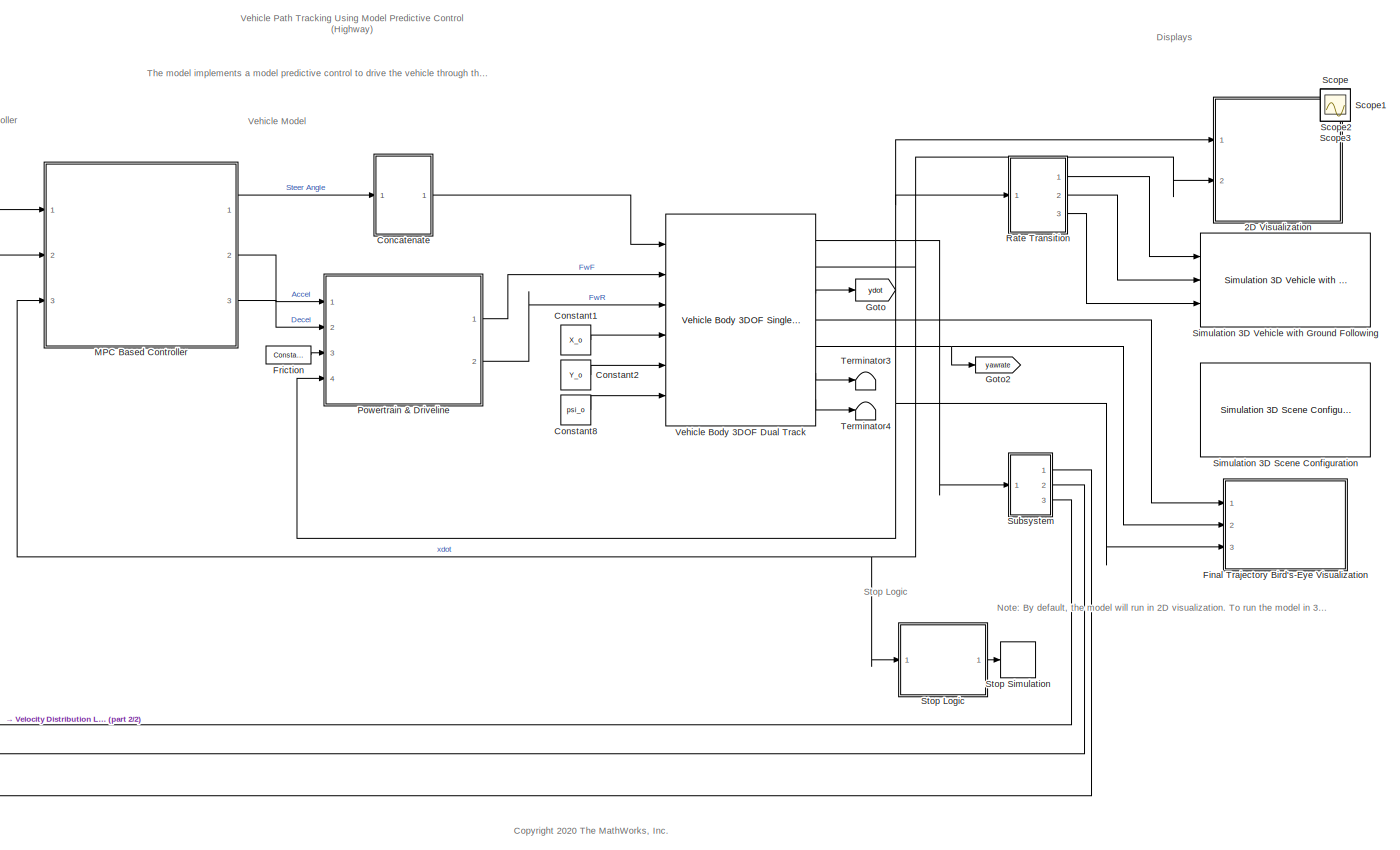
[diagram: root canvas - part 1/2, most of the canvas]
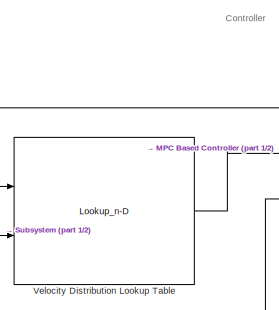
[diagram: root canvas - part 2/2, top left region]
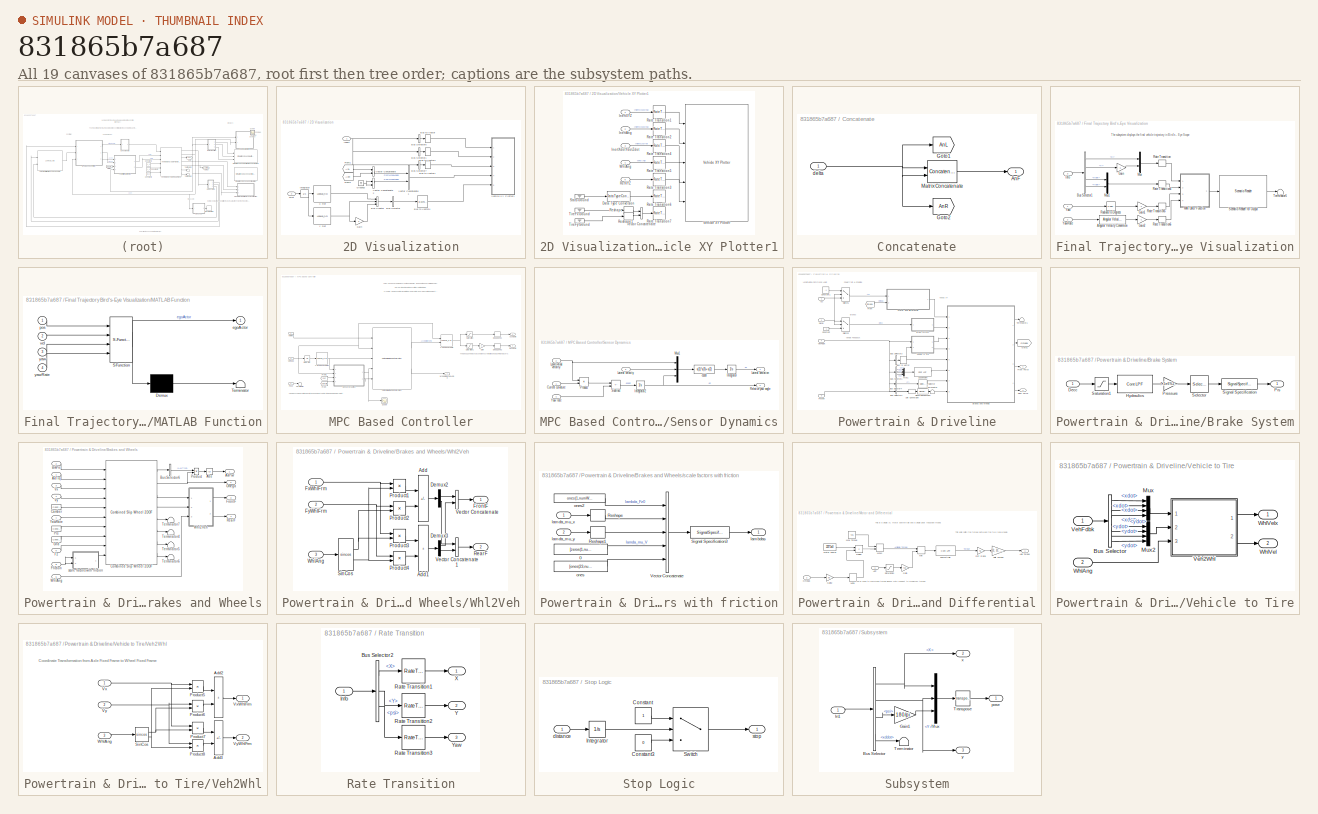
[diagram: thumbnail index - all 19 canvases of the model, root first then tree order]
MODEL slx_831865b7a687
KIND model
CONFIG AbsTol = auto
CONFIG EnableMultiTasking = off
CONFIG FixedStep = 0.001
CONFIG MaxStep = auto
CONFIG MinStep = auto
CONFIG PreLoadFcn = setUpModel
CONFIG RelTol = 1e-3
CONFIG SampleTimeConstraint = Unconstrained
CONFIG SolverName = VariableStepAuto
CONFIG StartTime = 0.0
CONFIG StopTime = inf
WORKSPACE source: mxarray member
WORKSPACE firstWarning = 0
WORKSPACE originalScenarioChecksum = 'F73A6DA3C723D3CA73A6F931B7A52A9C'
BLOCK [SubSystem] 2D Visualization
  Ports = [2]
  RequestExecContextInheritance = off
BLOCK [BusCreator] 2D Visualization/Bus Creator
  DisplayOption = bar
  InheritFromInputs = on
  Inputs = 3
  Ports = [3, 1]
BLOCK [BusSelector] 2D Visualization/Bus Selector
  OutputAsBus = on
  OutputSignals = signal1,signal2,signal3
  Ports = [1, 1]
BLOCK [BusSelector] 2D Visualization/Bus Selector1
  OutputAsBus = on
  OutputSignals = InertFrm.Cg.Ang.phi,InertFrm.Cg.Ang.theta,InertFrm.Cg.Ang.psi
  Ports = [1, 1]
BLOCK [BusSelector] 2D Visualization/Bus Selector6
  OutputAsBus = on
  OutputSignals = InertFrm.Geom.Disp.X,InertFrm.Geom.Disp.Y,InertFrm.Geom.Disp.Z
  Ports = [1, 1]
BLOCK [BusSelector] 2D Visualization/Bus Selector7
  OutputAsBus = on
  OutputSignals = InertFrm.Geom.Vel.Xdot,InertFrm.Geom.Vel.Ydot,InertFrm.Geom.Vel.Zdot
  Ports = [1, 1]
BLOCK [BusToVector] 2D Visualization/Bus to Vector
BLOCK [BusToVector] 2D Visualization/Bus to Vector1
BLOCK [BusToVector] 2D Visualization/Bus to Vector2
BLOCK [BusToVector] 2D Visualization/Bus to Vector4
BLOCK [From] 2D Visualization/From1
  GotoTag = AnL
  TagVisibility = global
BLOCK [From] 2D Visualization/From2
  GotoTag = AnR
  TagVisibility = global
BLOCK [Gain] 2D Visualization/Gain
  Gain = 0
BLOCK [Ground] 2D Visualization/Ground3
BLOCK [Inport] 2D Visualization/Inport
BLOCK [Integrator] 2D Visualization/Integrator
  Ports = [1, 1]
BLOCK [Concatenate] 2D Visualization/Vector Concatenate
  Ports = [2, 1]
BLOCK [Concatenate] 2D Visualization/Vector Concatenate1
  Ports = [2, 1]
BLOCK [Concatenate] 2D Visualization/Vector Concatenate2
  Ports = [2, 1]
BLOCK [SubSystem] 2D Visualization/Vehicle XY Plotter1
  Ports = [5]
  RequestExecContextInheritance = off
BLOCK [DataTypeConversion] 2D Visualization/Vehicle XY Plotter1/Data Type Conversion
  OutDataTypeStr = double
  RndMeth = Floor
  SaturateOnIntegerOverflow = off
BLOCK [Inport] 2D Visualization/Vehicle XY Plotter1/InertAng
  Port = 2
BLOCK [Inport] 2D Visualization/Vehicle XY Plotter1/InertXYZ
BLOCK [Inport] 2D Visualization/Vehicle XY Plotter1/InertXdotYdotZdot
  Port = 3
BLOCK [RateTransition] 2D Visualization/Vehicle XY Plotter1/Rate Transition1
  Deterministic = off
  OutPortSampleTime = pltDT
BLOCK [RateTransition] 2D Visualization/Vehicle XY Plotter1/Rate Transition2
  Deterministic = off
  OutPortSampleTime = pltDT
BLOCK [RateTransition] 2D Visualization/Vehicle XY Plotter1/Rate Transition3
  Deterministic = off
  OutPortSampleTime = pltDT
BLOCK [RateTransition] 2D Visualization/Vehicle XY Plotter1/Rate Transition4
  Deterministic = off
  OutPortSampleTime = pltDT
BLOCK [RateTransition] 2D Visualization/Vehicle XY Plotter1/Rate Transition5
  Deterministic = off
  OutPortSampleTime = pltDT
BLOCK [RateTransition] 2D Visualization/Vehicle XY Plotter1/Rate Transition6
  Deterministic = off
  OutPortSampleTime = pltDT
BLOCK [RateTransition] 2D Visualization/Vehicle XY Plotter1/Rate Transition7
  Deterministic = off
  OutPortSampleTime = pltDT
BLOCK [Inport] 2D Visualization/Vehicle XY Plotter1/RefXYZ
  Port = 5
BLOCK [Reshape] 2D Visualization/Vehicle XY Plotter1/Reshape
  OutputDimensionality = Row vector (2-D)
  Ports = [1, 1]
BLOCK [Reshape] 2D Visualization/Vehicle XY Plotter1/Reshape1
  OutputDimensionality = Row vector (2-D)
  Ports = [1, 1]
BLOCK [Ground] 2D Visualization/Vehicle XY Plotter1/Stats Ground
BLOCK [Ground] 2D Visualization/Vehicle XY Plotter1/TireFx Ground
BLOCK [Ground] 2D Visualization/Vehicle XY Plotter1/TireFy Ground
BLOCK [Concatenate] 2D Visualization/Vehicle XY Plotter1/Vector Concatenate
  Mode = Multidimensional array
  Ports = [2, 1]
BLOCK [Reference] 2D Visualization/Vehicle XY Plotter1/Vehicle XY Plotter  REF=vehdynlibviscommon/Vehicle XY Plotter
  Ports = [5]
  SourceBlock = vehdynlibviscommon/Vehicle XY Plotter
  SourceProductBaseCode = VE
  SourceType = Vehicle XY Plotter
BLOCK [Inport] 2D Visualization/Vehicle XY Plotter1/WhlAng
  Port = 4
BLOCK [Lookup_n-D] 2D Visualization/X Ref
  BreakpointsForDimension1 = gradbp
  InputPortMap = u0
  InternalRulePriority = Speed
  NumberOfTableDimensions = 1
  Ports = [1, 1]
  RndMeth = Simplest
  Table = xRef2s
BLOCK [Lookup_n-D] 2D Visualization/Y Ref
  BreakpointsForDimension1 = gradbp
  InputPortMap = u0
  InternalRulePriority = Speed
  NumberOfTableDimensions = 1
  Ports = [1, 1]
  RndMeth = Simplest
  Table = yRef2s
BLOCK [Inport] 2D Visualization/xDot
  Port = 2
BLOCK [SubSystem] Concatenate
  Ports = [1, 1]
  RequestExecContextInheritance = off
BLOCK [Outport] Concatenate/AnF
  VectorParamsAs1DForOutWhenUnconnected = off
BLOCK [Goto] Concatenate/Goto1
  GotoTag = AnL
  TagVisibility = global
BLOCK [Goto] Concatenate/Goto2
  GotoTag = AnR
  TagVisibility = global
BLOCK [Concatenate] Concatenate/Matrix Concatenate
  Ports = [2, 1]
BLOCK [Inport] Concatenate/delta
BLOCK [Constant] Constant1
  Value = X_o
BLOCK [Constant] Constant2
  Value = Y_o
BLOCK [Constant] Constant8
  Value = psi_o
BLOCK [SubSystem] Final Trajectory Bird's-Eye Visualization
  Ports = [3]
  RequestExecContextInheritance = off
BLOCK [Reference] Final Trajectory Bird's-Eye Visualization/Angular Velocity Conversion  REF=aerolibconvert2/Angular Velocity
Conversion
  Ports = [1, 1]
  SourceBlock = aerolibconvert2/Angular Velocity\nConversion
  SourceProductBaseCode = AE
  SourceType = Angular Velocity Conversion
BLOCK [BusSelector] Final Trajectory Bird's-Eye Visualization/Bus Selector1
  OutputSignals = InertFrm.Cg.Disp.X,InertFrm.Cg.Disp.Y,InertFrm.Cg.Vel.Xdot,InertFrm.Cg.Vel.Ydot
  Ports = [1, 4]
BLOCK [Gain] Final Trajectory Bird's-Eye Visualization/Gain
  Gain = -1
BLOCK [Gain] Final Trajectory Bird's-Eye Visualization/Gain1
  Gain = -1
BLOCK [Gain] Final Trajectory Bird's-Eye Visualization/Gain2
  Gain = -1
BLOCK [Inport] Final Trajectory Bird's-Eye Visualization/Info
  Port = 3
BLOCK [SubSystem] Final Trajectory Bird's-Eye Visualization/MATLAB Function
  ErrorFcn = Stateflow.Translate.translate
  PermitHierarchicalResolution = ExplicitOnly
  Ports = [4, 1]
  RequestExecContextInheritance = off
  SFBlockType = MATLAB Function
  TreatAsAtomicUnit = on
BLOCK [Demux] Final Trajectory Bird's-Eye Visualization/MATLAB Function/ Demux 
  Outputs = 1
  Ports = [1, 1]
BLOCK [S-Function] Final Trajectory Bird's-Eye Visualization/MATLAB Function/ SFunction 
  EnableBusSupport = on
  FunctionName = sf_sfun
  PortCounts = [4 2]
  Ports = [4, 2]
  SFcnIsStateOwnerBlock = off
  SFunctionDeploymentMode = off
  Tag = Stateflow S-Function 2
BLOCK [Terminator] Final Trajectory Bird's-Eye Visualization/MATLAB Function/ Terminator 
BLOCK [Outport] Final Trajectory Bird's-Eye Visualization/MATLAB Function/egoActor
BLOCK [Inport] Final Trajectory Bird's-Eye Visualization/MATLAB Function/pos
BLOCK [Inport] Final Trajectory Bird's-Eye Visualization/MATLAB Function/vel
  Port = 2
BLOCK [Inport] Final Trajectory Bird's-Eye Visualization/MATLAB Function/yaw
  Port = 3
BLOCK [Inport] Final Trajectory Bird's-Eye Visualization/MATLAB Function/yawRate
  Port = 4
BLOCK [Mux] Final Trajectory Bird's-Eye Visualization/Mux
  DisplayOption = bar
  Inputs = 2
  Ports = [2, 1]
BLOCK [Mux] Final Trajectory Bird's-Eye Visualization/Mux1
  DisplayOption = bar
  Inputs = 2
  Ports = [2, 1]
BLOCK [Reference] Final Trajectory Bird's-Eye Visualization/Radians to Degrees  REF=simulink_extras/Transformations/Radians
to Degrees
  Ports = [1, 1]
  SourceBlock = simulink_extras/Transformations/Radians\nto Degrees
  SourceProductBaseCode = SL
  SourceType = RadiansToDegrees
BLOCK [RateTransition] Final Trajectory Bird's-Eye Visualization/Rate Transition
BLOCK [RateTransition] Final Trajectory Bird's-Eye Visualization/Rate Transition4
  NameLocation = left
BLOCK [RateTransition] Final Trajectory Bird's-Eye Visualization/Rate Transition5
BLOCK [RateTransition] Final Trajectory Bird's-Eye Visualization/Rate Transition6
BLOCK [Reference] Final Trajectory Bird's-Eye Visualization/Scenario Reader for Output   REF=drivingscenarioandsensors/Scenario Reader
  Ports = [1, 1]
  SourceBlock = drivingscenarioandsensors/Scenario Reader
  SourceProductBaseCode = DR
  SourceType = driving.scenario.internal.ScenarioReader
BLOCK [Terminator] Final Trajectory Bird's-Eye Visualization/Terminator6
BLOCK [Inport] Final Trajectory Bird's-Eye Visualization/Yaw
BLOCK [Inport] Final Trajectory Bird's-Eye Visualization/YawRate
  Port = 2
BLOCK [Reference] Friction  REF=vehdynlibtirecommon/Constant
  Ports = [0, 1]
  SourceBlock = vehdynlibtirecommon/Constant
  SourceProductBaseCode = VE
BLOCK [Goto] Goto
  GotoTag = ydot
  TagVisibility = global
BLOCK [Goto] Goto2
  GotoTag = yawrate
  TagVisibility = global
BLOCK [SubSystem] MPC Based Controller
  Ports = [3, 3]
  RequestExecContextInheritance = off
  VariantControl = Stanley
BLOCK [Lookup_n-D] MPC Based Controller/1-D Lookup Table1
  BreakpointsForDimension1 = gradbp
  ExtrapMethod = Clip
  InputPortMap = u0
  InternalRulePriority = Speed
  InterpMethod = Cubic spline
  NumberOfTableDimensions = 1
  Ports = [1, 1]
  RndMeth = Simplest
  Table = curvature
BLOCK [Lookup_n-D] MPC Based Controller/2-D Lookup Table
  BreakpointsForDimension1 = vel_vec
  BreakpointsForDimension2 = accel_vec
  InputPortMap = u0,u1
  InternalRulePriority = Speed
  Ports = [2, 1]
  RndMeth = Simplest
  Table = pedal_map'
BLOCK [Outport] MPC Based Controller/AccelCmd
  Port = 2
BLOCK [DeadZone] MPC Based Controller/Dead Zone1
  LowerValue = -0.001
  UpperValue = 0.001
BLOCK [DeadZone] MPC Based Controller/Dead Zone2
  LowerValue = -0.001
  UpperValue = 0.001
BLOCK [Outport] MPC Based Controller/DecelCmd
  Port = 3
BLOCK [From] MPC Based Controller/From
  GotoTag = yawrate
  TagVisibility = global
BLOCK [From] MPC Based Controller/From1
  GotoTag = ydot
  TagVisibility = global
BLOCK [Gain] MPC Based Controller/Gain
  Gain = -1
BLOCK [Integrator] MPC Based Controller/Integrator
  Ports = [1, 1]
BLOCK [Reference] MPC Based Controller/Path Following Control System  REF=mpcadaslib/Path Following Control System
  Ports = [5, 2]
  SourceBlock = mpcadaslib/Path Following Control System
  SourceProductBaseCode = MP
  SourceType = Path following control (PFC) system
BLOCK [Inport] MPC Based Controller/Pose
BLOCK [Saturate] MPC Based Controller/Saturation
  LowerLimit = 0
  UpperLimit = 1
BLOCK [Saturate] MPC Based Controller/Saturation1
  LowerLimit = -1
  UpperLimit = 0
BLOCK [Scope] MPC Based Controller/Scope
  Floating = off
  NumInputPorts = 1
  Ports = [1]
  ScopeSpecificationString = Simulink.scopes.TimeScopeBlockCfg('CurrentConfiguration', extmgr.ConfigurationSet(extmgr.Configuration('Core','General UI',true),extmgr.Configuration('Core','Source UI',true),extmgr.Configuration('Sources','WiredSimulink',true,'DataLoggingVariableName','ScopeData1'),extmgr.Configuration('Visuals','Time Domain',true,'SerializedDisplays',{struct('MinYLimReal','-0.8712','MaxYLimReal','-0.36912','YLab...<+1427ch>
BLOCK [SubSystem] MPC Based Controller/Sensor Dynamics
  Ports = [4, 2]
  RequestExecContextInheritance = off
BLOCK [Inport] MPC Based Controller/Sensor Dynamics/Current curvature
BLOCK [Integrator] MPC Based Controller/Sensor Dynamics/Integrator
  Ports = [1, 1]
BLOCK [Integrator] MPC Based Controller/Sensor Dynamics/Integrator2
  Ports = [1, 1]
BLOCK [Outport] MPC Based Controller/Sensor Dynamics/Lateral deviation
  VectorParamsAs1DForOutWhenUnconnected = off
BLOCK [Inport] MPC Based Controller/Sensor Dynamics/Lateral velocity
  Port = 3
BLOCK [Inport] MPC Based Controller/Sensor Dynamics/Longitudinal velocity
  Port = 2
BLOCK [Mux] MPC Based Controller/Sensor Dynamics/Mux1
  DisplayOption = bar
  Inputs = [1 1 1]
  Ports = [3, 1]
BLOCK [Product] MPC Based Controller/Sensor Dynamics/Product
  Ports = [2, 1]
BLOCK [Outport] MPC Based Controller/Sensor Dynamics/Relative yaw angle
  Port = 2
  VectorParamsAs1DForOutWhenUnconnected = off
BLOCK [Sum] MPC Based Controller/Sensor Dynamics/Subtract
  IconShape = rectangular
  Inputs = -+
  Ports = [2, 1]
BLOCK [Inport] MPC Based Controller/Sensor Dynamics/Yaw rate
  Port = 4
BLOCK [Fcn] MPC Based Controller/Sensor Dynamics/e1dot
  Expr = u(1)*u(3)+u(2)
BLOCK [Terminator] MPC Based Controller/Terminator
BLOCK [Inport] MPC Based Controller/VelFdbk
  Port = 3
BLOCK [Inport] MPC Based Controller/VelRef
  Port = 2
BLOCK [Outport] MPC Based Controller/WheelSteeringAngle
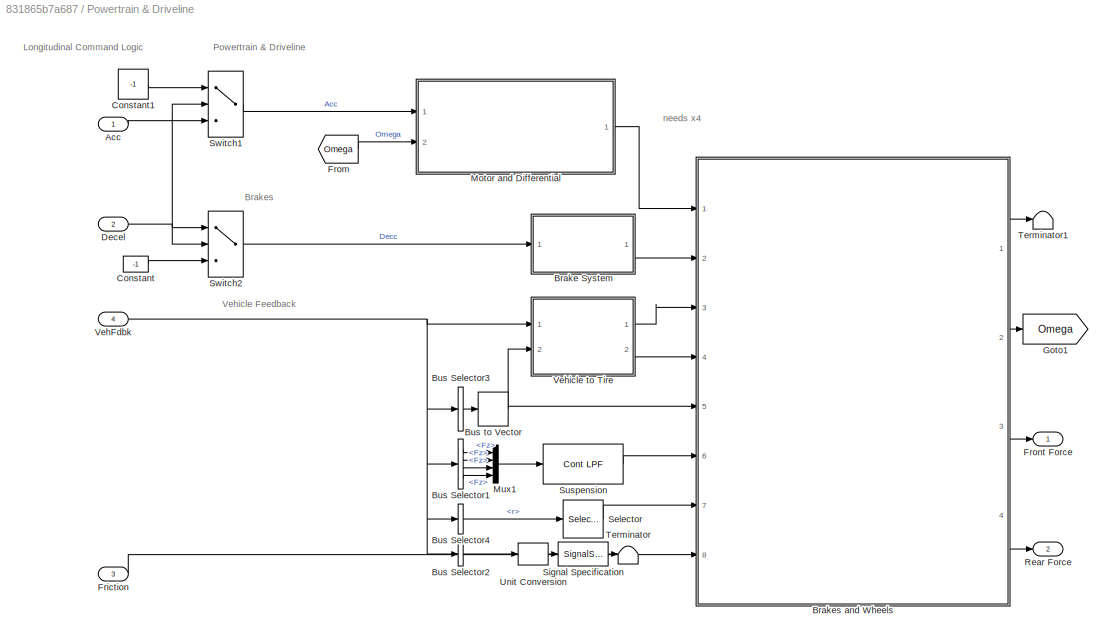
BLOCK [SubSystem] Powertrain & Driveline
  Ports = [4, 2]
  RequestExecContextInheritance = off
BLOCK [Inport] Powertrain & Driveline/Acc
BLOCK [SubSystem] Powertrain & Driveline/Brake System
  Ports = [1, 1]
  RequestExecContextInheritance = off
BLOCK [Inport] Powertrain & Driveline/Brake System/Decc
BLOCK [Reference] Powertrain & Driveline/Brake System/Hydraulics  REF=autolibutils/Cont LPF
  Ports = [1, 1]
  SourceBlock = autolibutils/Cont LPF
  SourceProductBaseCode = PW,DR,MT,UV,VE
BLOCK [Gain] Powertrain & Driveline/Brake System/Pressure
  Gain = 7.5e6%2e7
BLOCK [Outport] Powertrain & Driveline/Brake System/Prs
  PortDimensions = 4
  VectorParamsAs1DForOutWhenUnconnected = off
BLOCK [Saturate] Powertrain & Driveline/Brake System/Saturation1
  LowerLimit = 0
  UpperLimit = inf
  ZeroCross = off
BLOCK [Selector] Powertrain & Driveline/Brake System/Selector
  IndexOptions = Index vector (dialog)
  Indices = [1 1 1 1]
  InputPortWidth = 1
  OutputSizes = 1
  Ports = [1, 1]
BLOCK [SignalSpecification] Powertrain & Driveline/Brake System/Signal Specification
  Unit = Pa
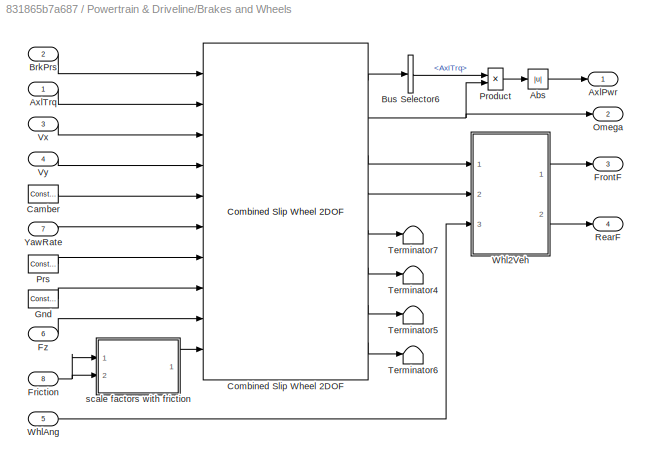
BLOCK [SubSystem] Powertrain & Driveline/Brakes and Wheels
  Ports = [8, 4]
  RequestExecContextInheritance = off
  TreatAsAtomicUnit = on
BLOCK [Abs] Powertrain & Driveline/Brakes and Wheels/Abs
  SaturateOnIntegerOverflow = off
BLOCK [Outport] Powertrain & Driveline/Brakes and Wheels/AxlPwr
BLOCK [Inport] Powertrain & Driveline/Brakes and Wheels/AxlTrq
BLOCK [Inport] Powertrain & Driveline/Brakes and Wheels/BrkPrs
  Port = 2
BLOCK [BusSelector] Powertrain & Driveline/Brakes and Wheels/Bus Selector6
  OutputSignals = AxlTrq
  Ports = [1, 1]
BLOCK [Reference] Powertrain & Driveline/Brakes and Wheels/Camber  REF=vehdynlibtirecommon/Constant
  Ports = [0, 1]
  SourceBlock = vehdynlibtirecommon/Constant
  SourceProductBaseCode = VE
BLOCK [Reference] Powertrain & Driveline/Brakes and Wheels/Combined Slip Wheel 2DOF  REF=vehdynlibtire/Combined Slip Wheel 2DOF
  Ports = [10, 8]
  SourceBlock = vehdynlibtire/Combined Slip Wheel 2DOF
  SourceProductBaseCode = VE
  SourceType = Combined Slip Wheel 2DOF
BLOCK [Inport] Powertrain & Driveline/Brakes and Wheels/Friction
  Port = 8
BLOCK [Outport] Powertrain & Driveline/Brakes and Wheels/FrontF
  Port = 3
BLOCK [Inport] Powertrain & Driveline/Brakes and Wheels/Fz
  Port = 6
  PortDimensions = 4
BLOCK [Reference] Powertrain & Driveline/Brakes and Wheels/Gnd  REF=vehdynlibtirecommon/Constant
  Ports = [0, 1]
  SourceBlock = vehdynlibtirecommon/Constant
  SourceProductBaseCode = VE
BLOCK [Outport] Powertrain & Driveline/Brakes and Wheels/Omega
  Port = 2
BLOCK [Product] Powertrain & Driveline/Brakes and Wheels/Product
  Ports = [2, 1]
BLOCK [Reference] Powertrain & Driveline/Brakes and Wheels/Prs  REF=vehdynlibtirecommon/Constant
  Ports = [0, 1]
  SourceBlock = vehdynlibtirecommon/Constant
  SourceProductBaseCode = VE
BLOCK [Outport] Powertrain & Driveline/Brakes and Wheels/RearF
  Port = 4
BLOCK [Terminator] Powertrain & Driveline/Brakes and Wheels/Terminator4
BLOCK [Terminator] Powertrain & Driveline/Brakes and Wheels/Terminator5
BLOCK [Terminator] Powertrain & Driveline/Brakes and Wheels/Terminator6
BLOCK [Terminator] Powertrain & Driveline/Brakes and Wheels/Terminator7
BLOCK [Inport] Powertrain & Driveline/Brakes and Wheels/Vx
  Port = 3
BLOCK [Inport] Powertrain & Driveline/Brakes and Wheels/Vy
  Port = 4
BLOCK [SubSystem] Powertrain & Driveline/Brakes and Wheels/Whl2Veh
  Ports = [3, 2]
  RequestExecContextInheritance = off
BLOCK [Sum] Powertrain & Driveline/Brakes and Wheels/Whl2Veh/Add
  IconShape = rectangular
  Inputs = +-
  Ports = [2, 1]
BLOCK [Sum] Powertrain & Driveline/Brakes and Wheels/Whl2Veh/Add1
  IconShape = rectangular
  Ports = [2, 1]
BLOCK [Demux] Powertrain & Driveline/Brakes and Wheels/Whl2Veh/Demux2
  Outputs = [2 2]
  Ports = [1, 2]
BLOCK [Demux] Powertrain & Driveline/Brakes and Wheels/Whl2Veh/Demux3
  Outputs = [2 2]
  Ports = [1, 2]
BLOCK [Outport] Powertrain & Driveline/Brakes and Wheels/Whl2Veh/FrontF
BLOCK [Inport] Powertrain & Driveline/Brakes and Wheels/Whl2Veh/FxWhlFrm
  PortDimensions = 4
BLOCK [Inport] Powertrain & Driveline/Brakes and Wheels/Whl2Veh/FyWhlFrm
  Port = 2
  PortDimensions = 4
BLOCK [Product] Powertrain & Driveline/Brakes and Wheels/Whl2Veh/Product1
  Ports = [2, 1]
BLOCK [Product] Powertrain & Driveline/Brakes and Wheels/Whl2Veh/Product2
  Ports = [2, 1]
BLOCK [Product] Powertrain & Driveline/Brakes and Wheels/Whl2Veh/Product3
  Ports = [2, 1]
BLOCK [Product] Powertrain & Driveline/Brakes and Wheels/Whl2Veh/Product4
  Ports = [2, 1]
BLOCK [Outport] Powertrain & Driveline/Brakes and Wheels/Whl2Veh/RearF
  Port = 2
BLOCK [Trigonometry] Powertrain & Driveline/Brakes and Wheels/Whl2Veh/SinCos
  Operator = sincos
  Ports = [1, 2]
BLOCK [Concatenate] Powertrain & Driveline/Brakes and Wheels/Whl2Veh/Vector Concatenate
  ConcatenateDimension = 2
  Mode = Multidimensional array
  Ports = [2, 1]
BLOCK [Concatenate] Powertrain & Driveline/Brakes and Wheels/Whl2Veh/Vector Concatenate1
  ConcatenateDimension = 2
  Mode = Multidimensional array
  Ports = [2, 1]
BLOCK [Inport] Powertrain & Driveline/Brakes and Wheels/Whl2Veh/WhlAng
  Port = 3
BLOCK [Inport] Powertrain & Driveline/Brakes and Wheels/WhlAng
  Port = 5
BLOCK [Inport] Powertrain & Driveline/Brakes and Wheels/YawRate
  Port = 7
BLOCK [SubSystem] Powertrain & Driveline/Brakes and Wheels/scale factors with friction
  Ports = [2, 1]
  RequestExecContextInheritance = off
BLOCK [Constant] Powertrain & Driveline/Brakes and Wheels/scale factors with friction/0
  Value = [zeros(1,numWheels)]
  VectorParams1D = off
BLOCK [Reshape] Powertrain & Driveline/Brakes and Wheels/scale factors with friction/Reshape
  OutputDimensionality = Row vector (2-D)
  OutputDimensions = [1,numWheels]
  Ports = [1, 1]
BLOCK [Reshape] Powertrain & Driveline/Brakes and Wheels/scale factors with friction/Reshape1
  OutputDimensionality = Row vector (2-D)
  OutputDimensions = [1,numWheels]
  Ports = [1, 1]
BLOCK [SignalSpecification] Powertrain & Driveline/Brakes and Wheels/scale factors with friction/Signal Specification3
  Unit = 1
BLOCK [Concatenate] Powertrain & Driveline/Brakes and Wheels/scale factors with friction/Vector Concatenate
  Mode = Multidimensional array
  NumInputs = 5
  Ports = [5, 1]
BLOCK [Outport] Powertrain & Driveline/Brakes and Wheels/scale factors with friction/lambdas
  Unit = 1
  VectorParamsAs1DForOutWhenUnconnected = off
BLOCK [Inport] Powertrain & Driveline/Brakes and Wheels/scale factors with friction/lamda_mu_x
BLOCK [Inport] Powertrain & Driveline/Brakes and Wheels/scale factors with friction/lamda_mu_y
  Port = 2
BLOCK [Constant] Powertrain & Driveline/Brakes and Wheels/scale factors with friction/ones
  Value = [ones(23,numWheels)]
  VectorParams1D = off
BLOCK [Constant] Powertrain & Driveline/Brakes and Wheels/scale factors with friction/ones2
  Value = ones(1,numWheels)
  VectorParams1D = off
BLOCK [BusSelector] Powertrain & Driveline/Bus Selector1
  OutputSignals = BdyFrm.Forces.Tires.FrntTires.Lft.Fz,BdyFrm.Forces.Tires.FrntTires.Rght.Fz,BdyFrm.Forces.Tires.RearTires.Lft.Fz,BdyFrm.Forces.Tires.RearTires.Rght.Fz
  Ports = [1, 4]
BLOCK [BusSelector] Powertrain & Driveline/Bus Selector2
  OutputAsBus = on
  OutputSignals = BdyFrm.Cg.Vel.xdot
  Ports = [1, 1]
BLOCK [BusSelector] Powertrain & Driveline/Bus Selector3
  OutputAsBus = on
  OutputSignals = BdyFrm.FrntAxl.Steer.WhlAngFL,BdyFrm.FrntAxl.Steer.WhlAngFR,BdyFrm.RearAxl.Steer.WhlAngRL,BdyFrm.RearAxl.Steer.WhlAngRR
  Ports = [1, 1]
BLOCK [BusSelector] Powertrain & Driveline/Bus Selector4
  OutputSignals = BdyFrm.Cg.AngVel.r
  Ports = [1, 1]
BLOCK [BusToVector] Powertrain & Driveline/Bus to Vector
BLOCK [Constant] Powertrain & Driveline/Constant
  NameLocation = top
  Value = -1
BLOCK [Constant] Powertrain & Driveline/Constant1
  Value = -1
BLOCK [Inport] Powertrain & Driveline/Decel
  Port = 2
BLOCK [Inport] Powertrain & Driveline/Friction
  Port = 3
BLOCK [From] Powertrain & Driveline/From
  GotoTag = Omega
BLOCK [Outport] Powertrain & Driveline/Front Force
  VectorParamsAs1DForOutWhenUnconnected = off
BLOCK [Goto] Powertrain & Driveline/Goto1
  GotoTag = Omega
BLOCK [SubSystem] Powertrain & Driveline/Motor and Differential
  Ports = [2, 1]
  RequestExecContextInheritance = off
BLOCK [Inport] Powertrain & Driveline/Motor and Differential/APP
BLOCK [Outport] Powertrain & Driveline/Motor and Differential/Axle Torque
BLOCK [Gain] Powertrain & Driveline/Motor and Differential/Diff Ratio
  Gain = 9.5
BLOCK [Product] Powertrain & Driveline/Motor and Differential/Divide
  Inputs = */
  Ports = [2, 1]
BLOCK [Gain] Powertrain & Driveline/Motor and Differential/Gain
  Gain = 425
BLOCK [Gain] Powertrain & Driveline/Motor and Differential/Gain2
  Gain = 9.5
BLOCK [Constant] Powertrain & Driveline/Motor and Differential/Max Torque
  Value = 425
BLOCK [MinMax] Powertrain & Driveline/Motor and Differential/Max1
  Inputs = 2
  Ports = [2, 1]
BLOCK [MinMax] Powertrain & Driveline/Motor and Differential/Min
  Inputs = 2
  Ports = [2, 1]
BLOCK [MinMax] Powertrain & Driveline/Motor and Differential/Min1
  Ports = [1, 1]
BLOCK [Constant] Powertrain & Driveline/Motor and Differential/Motor Power
  Value = 225*1e3
BLOCK [Inport] Powertrain & Driveline/Motor and Differential/Omega
  Port = 2
BLOCK [Reference] Powertrain & Driveline/Motor and Differential/Powertrain  REF=autolibutils/Cont LPF
  Ports = [1, 1]
  SourceBlock = autolibutils/Cont LPF
  SourceProductBaseCode = PW,DR,MT,UV,VE
BLOCK [Saturate] Powertrain & Driveline/Motor and Differential/Saturation
  LowerLimit = 0
  UpperLimit = inf
BLOCK [Gain] Powertrain & Driveline/Motor and Differential/Split Torque
  Gain = [0; 0; 0.5; 0.5]
BLOCK [Mux] Powertrain & Driveline/Mux1
  DisplayOption = bar
  Ports = [4, 1]
BLOCK [Outport] Powertrain & Driveline/Rear Force
  Port = 2
  VectorParamsAs1DForOutWhenUnconnected = off
BLOCK [Selector] Powertrain & Driveline/Selector
  IndexOptions = Index vector (dialog)
  Indices = [1 1 1 1]
  InputPortWidth = 1
  OutputSizes = 1
  Ports = [1, 1]
BLOCK [SignalSpecification] Powertrain & Driveline/Signal Specification
  Unit = km/hr
BLOCK [Reference] Powertrain & Driveline/Suspension  REF=autolibutils/Cont LPF
  Ports = [1, 1]
  SourceBlock = autolibutils/Cont LPF
  SourceProductBaseCode = PW,DR,MT,UV,VE
BLOCK [Switch] Powertrain & Driveline/Switch1
  Criteria = u2 > Threshold
  InputSameDT = off
  SaturateOnIntegerOverflow = off
BLOCK [Switch] Powertrain & Driveline/Switch2
  Criteria = u2 > Threshold
  InputSameDT = off
  SaturateOnIntegerOverflow = off
BLOCK [Terminator] Powertrain & Driveline/Terminator
BLOCK [Terminator] Powertrain & Driveline/Terminator1
BLOCK [UnitConversion] Powertrain & Driveline/Unit Conversion
BLOCK [Inport] Powertrain & Driveline/VehFdbk
  Port = 4
BLOCK [SubSystem] Powertrain & Driveline/Vehicle to Tire
  Ports = [2, 2]
  RequestExecContextInheritance = off
BLOCK [BusSelector] Powertrain & Driveline/Vehicle to Tire/Bus Selector
  OutputSignals = BdyFrm.FrntAxl.Lft.Vel.xdot,BdyFrm.FrntAxl.Rght.Vel.xdot,BdyFrm.RearAxl.Lft.Vel.xdot,BdyFrm.RearAxl.Rght.Vel.xdot,BdyFrm.FrntAxl.Lft.Vel.ydot,BdyFrm.FrntAxl.Rght.Vel.ydot,BdyFrm.RearAxl.Lft.Vel.ydot,BdyFrm.RearAxl.Rght.Vel.ydot
  Ports = [1, 8]
BLOCK [Mux] Powertrain & Driveline/Vehicle to Tire/Mux
  DisplayOption = bar
  Ports = [4, 1]
BLOCK [Mux] Powertrain & Driveline/Vehicle to Tire/Mux2
  DisplayOption = bar
  Ports = [4, 1]
BLOCK [SubSystem] Powertrain & Driveline/Vehicle to Tire/Veh2Whl
  Ports = [3, 2]
  RequestExecContextInheritance = off
BLOCK [Sum] Powertrain & Driveline/Vehicle to Tire/Veh2Whl/Add2
  IconShape = rectangular
  Ports = [2, 1]
BLOCK [Sum] Powertrain & Driveline/Vehicle to Tire/Veh2Whl/Add3
  IconShape = rectangular
  Inputs = -+
  Ports = [2, 1]
BLOCK [Product] Powertrain & Driveline/Vehicle to Tire/Veh2Whl/Product5
  Ports = [2, 1]
BLOCK [Product] Powertrain & Driveline/Vehicle to Tire/Veh2Whl/Product6
  Ports = [2, 1]
BLOCK [Product] Powertrain & Driveline/Vehicle to Tire/Veh2Whl/Product7
  Ports = [2, 1]
BLOCK [Product] Powertrain & Driveline/Vehicle to Tire/Veh2Whl/Product8
  Ports = [2, 1]
BLOCK [Trigonometry] Powertrain & Driveline/Vehicle to Tire/Veh2Whl/SinCos
  Operator = sincos
  Ports = [1, 2]
BLOCK [Inport] Powertrain & Driveline/Vehicle to Tire/Veh2Whl/Vx
BLOCK [Outport] Powertrain & Driveline/Vehicle to Tire/Veh2Whl/VxWhlFrm
BLOCK [Inport] Powertrain & Driveline/Vehicle to Tire/Veh2Whl/Vy
  Port = 2
BLOCK [Outport] Powertrain & Driveline/Vehicle to Tire/Veh2Whl/VyWhlFrm
  Port = 2
BLOCK [Inport] Powertrain & Driveline/Vehicle to Tire/Veh2Whl/WhlAng
  Port = 3
BLOCK [Inport] Powertrain & Driveline/Vehicle to Tire/VehFdbk
BLOCK [Inport] Powertrain & Driveline/Vehicle to Tire/WhlAng
  Port = 2
BLOCK [Outport] Powertrain & Driveline/Vehicle to Tire/WhlVel
  Port = 2
BLOCK [Outport] Powertrain & Driveline/Vehicle to Tire/WhlVelx
BLOCK [SubSystem] Rate Transition
  Ports = [1, 3]
  RequestExecContextInheritance = off
BLOCK [BusSelector] Rate Transition/Bus Selector2
  OutputSignals = InertFrm.Geom.Disp.X,InertFrm.Geom.Disp.Y,InertFrm.Cg.Ang.psi
  Ports = [1, 3]
BLOCK [Inport] Rate Transition/Info
BLOCK [RateTransition] Rate Transition/Rate Transition1
  InitialCondition = X_o
  OutPortSampleTime = 0.01
BLOCK [RateTransition] Rate Transition/Rate Transition2
  InitialCondition = Y_o
  OutPortSampleTime = 0.01
BLOCK [RateTransition] Rate Transition/Rate Transition3
  OutPortSampleTime = 0.01
BLOCK [Outport] Rate Transition/X
BLOCK [Outport] Rate Transition/Y
  Port = 2
BLOCK [Outport] Rate Transition/Yaw
  Port = 3
BLOCK [Scope] Scope
  Floating = off
  IOType = viewer
  NumInputPorts = 1
  Ports = []
  ScopeSpecificationString = Simulink.scopes.TimeScopeBlockCfg('CurrentConfiguration', extmgr.ConfigurationSet(extmgr.Configuration('Core','General UI',true),extmgr.Configuration('Core','Source UI',true),extmgr.Configuration('Sources','WiredSimulink',true),extmgr.Configuration('Visuals','Time Domain',true,'SerializedDisplays',{struct('MinYLimReal','7.34564','MaxYLimReal','12.51715','YLabelReal','','MinYLimMag','7.34564','MaxY...<+1417ch>
BLOCK [Scope] Scope1
  Floating = off
  IOType = viewer
  NumInputPorts = 1
  Ports = []
  ScopeSpecificationString = Simulink.scopes.TimeScopeBlockCfg('CurrentConfiguration', extmgr.ConfigurationSet(extmgr.Configuration('Core','General UI',true),extmgr.Configuration('Core','Source UI',true),extmgr.Configuration('Sources','WiredSimulink',true,'DataLoggingVariableName','ScopeData1'),extmgr.Configuration('Visuals','Time Domain',true,'SerializedDisplays',{struct('MinYLimReal','-0.05077','MaxYLimReal','0.11333','YLab...<+1395ch>
BLOCK [Scope] Scope2
  Floating = off
  IOType = viewer
  NumInputPorts = 1
  Ports = []
  ScopeSpecificationString = Simulink.scopes.TimeScopeBlockCfg('CurrentConfiguration', extmgr.ConfigurationSet(extmgr.Configuration('Core','General UI',true),extmgr.Configuration('Core','Source UI',true),extmgr.Configuration('Sources','WiredSimulink',true,'DataLoggingVariableName','ScopeData2'),extmgr.Configuration('Visuals','Time Domain',true,'SerializedDisplays',{struct('MinYLimReal','-0.01838','MaxYLimReal','0.16543','YLab...<+1372ch>
BLOCK [Scope] Scope3
  Floating = off
  IOType = viewer
  NumInputPorts = 1
  Ports = []
  ScopeSpecificationString = Simulink.scopes.TimeScopeBlockCfg('CurrentConfiguration', extmgr.ConfigurationSet(extmgr.Configuration('Core','General UI',true),extmgr.Configuration('Core','Source UI',true),extmgr.Configuration('Sources','WiredSimulink',true,'DataLoggingVariableName','ScopeData1'),extmgr.Configuration('Visuals','Time Domain',true,'SerializedDisplays',{struct('MinYLimReal','-1.72377','MaxYLimReal','1.27465','YLab...<+1364ch>
BLOCK [Reference] Simulation 3D Scene Configuration  REF=sim3dlib/Simulation 3D Scene Configuration
  Commented = on
  Ports = []
  Priority = 1
  SourceBlock = sim3dlib/Simulation 3D Scene Configuration
  SourceProductBaseCode = AE,DR,UV,VE
  SourceType = Simulation 3D Scene Configuration
BLOCK [Reference] Simulation 3D Vehicle with Ground Following  REF=vdynlib/Vehicle Scenarios/Sim3D/Sim3D Vehicle/Components/Simulation 3D Vehicle with Ground Following
  Commented = on
  Ports = [3]
  Priority = -1
  SourceBlock = vdynlib/Vehicle Scenarios/Sim3D/Sim3D Vehicle/Components/Simulation 3D Vehicle with Ground Following
  SourceProductBaseCode = VE
  SourceType = Simulation 3D Vehicle with Ground Following
BLOCK [SubSystem] Stop Logic
  Ports = [1, 1]
  RequestExecContextInheritance = off
BLOCK [Constant] Stop Logic/Constant
BLOCK [Constant] Stop Logic/Constant3
  Value = 0
BLOCK [Integrator] Stop Logic/Integrator
  Ports = [1, 1]
BLOCK [Switch] Stop Logic/Switch
  InputSameDT = off
  SaturateOnIntegerOverflow = off
  Threshold = gradbp(end)-10
BLOCK [Inport] Stop Logic/distance
BLOCK [Outport] Stop Logic/stop
  NameLocation = top
BLOCK [Stop] Stop Simulation
BLOCK [SubSystem] Subsystem
  Ports = [1, 3]
  RequestExecContextInheritance = off
BLOCK [BusSelector] Subsystem/Bus Selector
  OutputSignals = InertFrm.Cg.Disp.X,InertFrm.Cg.Disp.Y,InertFrm.Cg.Ang.psi,BdyFrm.Cg.Acc.xddot
  Ports = [1, 4]
BLOCK [Gain] Subsystem/Gain1
  Gain = 180/pi
BLOCK [Inport] Subsystem/In1
BLOCK [Mux] Subsystem/Mux
  DisplayOption = bar
  Inputs = 3
  Ports = [3, 1]
BLOCK [Terminator] Subsystem/Terminator
BLOCK [Math] Subsystem/Transpose
  Operator = transpose
  Ports = [1, 1]
  SignedPower = on
BLOCK [Outport] Subsystem/pose
BLOCK [Outport] Subsystem/x
  Port = 2
BLOCK [Outport] Subsystem/y
  Port = 3
BLOCK [Terminator] Terminator3
BLOCK [Terminator] Terminator4
BLOCK [Reference] Vehicle Body 3DOF Dual Track  REF=autolibshared/Vehicle Body 3DOF Single Track
  Ports = [6, 7]
  SourceBlock = autolibshared/Vehicle Body 3DOF Single Track
  SourceProductBaseCode = PW,DR,MT,UV,VE
  SourceType = Vehicle Body 3DOF Lateral
BLOCK [Lookup_n-D] Velocity Distribution Lookup Table
  BreakpointsForDimension1 = xlt
  BreakpointsForDimension2 = ylt
  ExtrapMethod = Clip
  InputPortMap = u0,u1
  InternalRulePriority = Speed
  Ports = [2, 1]
  RndMeth = Simplest
  Table = vel
ANNOTATION (root): Vehicle Path Tracking Using Model Predictive Control (Highway)
ANNOTATION (root): <copyright redacted>
ANNOTATION (root): Note: By default, the model will run in 2D visualization. To run the model in 3D visualization, enable the "Simulation 3D Vehicle with Ground Following" and " Simulation 3D Scene Configuration " blocks. Then enable " D isplay 3D simulation window " in the Simulation 3D Scene Configuration block.
ANNOTATION (root): Controller
ANNOTATION (root): Displays
ANNOTATION (root): Stop Logic
ANNOTATION (root): The model implements a model predictive control to drive the vehicle through the US Highway scene.
ANNOTATION (root): Vehicle Model
ANNOTATION Final Trajectory Bird's-Eye Visualization: The subsystem displays the final vehicle trajectory in Bird's - Eye Scope
ANNOTATION MPC Based Controller: This block comes from the "Lane Keeping Assist System Using Model Predictive Control" example.
ANNOTATION MPC Based Controller: The 'Dead Zone' blocks is used to ensure that the pedal command is zero.
ANNOTATION MPC Based Controller: This 2-D Lookup Table was created using a for-loop and then normalizing. This is required because the output of the MPC controller is acceleration (m/s^2), but the powertrain model uses pedal commands from 0-1. Here are the steps in the script to create the table: 1.) The for-loop is used to calculate the required torque (Nm) from the powertrain. 2.) The positive torque values are normalized based...<+285ch>
ANNOTATION Powertrain & Driveline: Brakes
ANNOTATION Powertrain & Driveline: Longitudinal Command Logic
ANNOTATION Powertrain & Driveline: Powertrain & Driveline
ANNOTATION Powertrain & Driveline: Vehicle Feedback
ANNOTATION Powertrain & Driveline: needs x4
ANNOTATION Powertrain & Driveline/Motor and Differential: APP is used to command torque linearly with respect to maximum torque
ANNOTATION Powertrain & Driveline/Motor and Differential: This gain splits the torque between the two real wheels.
ANNOTATION Powertrain & Driveline/Motor and Differential: This is a single AC motor powertrain and a single gear reduction model.
ANNOTATION Powertrain & Driveline/Vehicle to Tire/Veh2Whl: Coordinate Transformation from Axle Fixed Frame to Wheel Fixed Frame
LINE 2D Visualization/Bus Creator:1 -> 2D Visualization/Bus Selector:1
LINE 2D Visualization/Bus Selector1:1 -> 2D Visualization/Bus to Vector2:1
LINE 2D Visualization/Bus Selector6:1 -> 2D Visualization/Bus to Vector:1
LINE 2D Visualization/Bus Selector7:1 -> 2D Visualization/Bus to Vector1:1
LINE 2D Visualization/Bus Selector:1 -> 2D Visualization/Bus to Vector4:1
LINE 2D Visualization/Bus to Vector1:1 -> 2D Visualization/Vehicle XY Plotter1:3
LINE 2D Visualization/Bus to Vector2:1 -> 2D Visualization/Vehicle XY Plotter1:2
LINE 2D Visualization/Bus to Vector4:1 -> 2D Visualization/Vehicle XY Plotter1:5
LINE 2D Visualization/Bus to Vector:1 -> 2D Visualization/Vehicle XY Plotter1:1
LINE 2D Visualization/From1:1 -> 2D Visualization/Vector Concatenate:1
LINE 2D Visualization/From2:1 -> 2D Visualization/Vector Concatenate:2
LINE 2D Visualization/Gain:1 -> 2D Visualization/Bus Creator:3
NET 2D Visualization/Ground3:1 -> 2D Visualization/Vector Concatenate2:1, 2D Visualization/Vector Concatenate2:2
NET 2D Visualization/Inport:1 -> 2D Visualization/Bus Selector1:1, 2D Visualization/Bus Selector6:1, 2D Visualization/Bus Selector7:1
NET 2D Visualization/Integrator:1 -> 2D Visualization/X Ref:1, 2D Visualization/Y Ref:1
LINE 2D Visualization/Vector Concatenate1:1 -> 2D Visualization/Vehicle XY Plotter1:4
LINE 2D Visualization/Vector Concatenate2:1 -> 2D Visualization/Vector Concatenate1:2
LINE 2D Visualization/Vector Concatenate:1 -> 2D Visualization/Vector Concatenate1:1
LINE 2D Visualization/Vehicle XY Plotter1/Data Type Conversion:1 -> 2D Visualization/Vehicle XY Plotter1/Rate Transition6:1
LINE 2D Visualization/Vehicle XY Plotter1/InertAng:1 -> 2D Visualization/Vehicle XY Plotter1/Rate Transition2:1
LINE 2D Visualization/Vehicle XY Plotter1/InertXYZ:1 -> 2D Visualization/Vehicle XY Plotter1/Rate Transition1:1
LINE 2D Visualization/Vehicle XY Plotter1/InertXdotYdotZdot:1 -> 2D Visualization/Vehicle XY Plotter1/Rate Transition4:1
LINE 2D Visualization/Vehicle XY Plotter1/Rate Transition1:1 -> 2D Visualization/Vehicle XY Plotter1/Vehicle XY Plotter:1
LINE 2D Visualization/Vehicle XY Plotter1/Rate Transition2:1 -> 2D Visualization/Vehicle XY Plotter1/Vehicle XY Plotter:2
LINE 2D Visualization/Vehicle XY Plotter1/Rate Transition3:1 -> 2D Visualization/Vehicle XY Plotter1/Vehicle XY Plotter:5
LINE 2D Visualization/Vehicle XY Plotter1/Rate Transition4:1 -> 2D Visualization/Vehicle XY Plotter1/Vehicle XY Plotter:3
LINE 2D Visualization/Vehicle XY Plotter1/Rate Transition5:1 -> 2D Visualization/Vehicle XY Plotter1/Vehicle XY Plotter:4
LINE 2D Visualization/Vehicle XY Plotter1/RefXYZ:1 -> 2D Visualization/Vehicle XY Plotter1/Rate Transition3:1
LINE 2D Visualization/Vehicle XY Plotter1/Reshape1:1 -> 2D Visualization/Vehicle XY Plotter1/Vector Concatenate:2
LINE 2D Visualization/Vehicle XY Plotter1/Reshape:1 -> 2D Visualization/Vehicle XY Plotter1/Vector Concatenate:1
LINE 2D Visualization/Vehicle XY Plotter1/Stats Ground:1 -> 2D Visualization/Vehicle XY Plotter1/Data Type Conversion:1
LINE 2D Visualization/Vehicle XY Plotter1/TireFx Ground:1 -> 2D Visualization/Vehicle XY Plotter1/Reshape:1
LINE 2D Visualization/Vehicle XY Plotter1/TireFy Ground:1 -> 2D Visualization/Vehicle XY Plotter1/Reshape1:1
LINE 2D Visualization/Vehicle XY Plotter1/Vector Concatenate:1 -> 2D Visualization/Vehicle XY Plotter1/Rate Transition7:1
LINE 2D Visualization/Vehicle XY Plotter1/WhlAng:1 -> 2D Visualization/Vehicle XY Plotter1/Rate Transition5:1
LINE 2D Visualization/X Ref:1 -> 2D Visualization/Bus Creator:1
NET 2D Visualization/Y Ref:1 -> 2D Visualization/Bus Creator:2, 2D Visualization/Gain:1
LINE 2D Visualization/xDot:1 -> 2D Visualization/Integrator:1
LINE Concatenate/Matrix Concatenate:1 -> Concatenate/AnF:1
NET Concatenate/delta:1 -> Concatenate/Goto1:1, Concatenate/Goto2:1, Concatenate/Matrix Concatenate:1, Concatenate/Matrix Concatenate:2
LINE Concatenate:1 -> Vehicle Body 3DOF Dual Track:1
LINE Constant1:1 -> Vehicle Body 3DOF Dual Track:4
LINE Constant2:1 -> Vehicle Body 3DOF Dual Track:5
LINE Constant8:1 -> Vehicle Body 3DOF Dual Track:6
LINE Final Trajectory Bird's-Eye Visualization/Angular Velocity Conversion:1 -> Final Trajectory Bird's-Eye Visualization/Gain2:1
LINE Final Trajectory Bird's-Eye Visualization/Bus Selector1:1 -> Final Trajectory Bird's-Eye Visualization/Mux:1
LINE Final Trajectory Bird's-Eye Visualization/Bus Selector1:2 -> Final Trajectory Bird's-Eye Visualization/Gain:1
LINE Final Trajectory Bird's-Eye Visualization/Bus Selector1:3 -> Final Trajectory Bird's-Eye Visualization/Mux1:1
LINE Final Trajectory Bird's-Eye Visualization/Bus Selector1:4 -> Final Trajectory Bird's-Eye Visualization/Mux1:2
LINE Final Trajectory Bird's-Eye Visualization/Gain1:1 -> Final Trajectory Bird's-Eye Visualization/Rate Transition5:1
LINE Final Trajectory Bird's-Eye Visualization/Gain2:1 -> Final Trajectory Bird's-Eye Visualization/Rate Transition6:1
LINE Final Trajectory Bird's-Eye Visualization/Gain:1 -> Final Trajectory Bird's-Eye Visualization/Mux:2
LINE Final Trajectory Bird's-Eye Visualization/Info:1 -> Final Trajectory Bird's-Eye Visualization/Bus Selector1:1
LINE Final Trajectory Bird's-Eye Visualization/MATLAB Function:1 -> Final Trajectory Bird's-Eye Visualization/Scenario Reader for Output :1
LINE Final Trajectory Bird's-Eye Visualization/Mux1:1 -> Final Trajectory Bird's-Eye Visualization/Rate Transition4:1
LINE Final Trajectory Bird's-Eye Visualization/Mux:1 -> Final Trajectory Bird's-Eye Visualization/Rate Transition:1
LINE Final Trajectory Bird's-Eye Visualization/Radians to Degrees:1 -> Final Trajectory Bird's-Eye Visualization/Gain1:1
LINE Final Trajectory Bird's-Eye Visualization/Rate Transition4:1 -> Final Trajectory Bird's-Eye Visualization/MATLAB Function:2
LINE Final Trajectory Bird's-Eye Visualization/Rate Transition5:1 -> Final Trajectory Bird's-Eye Visualization/MATLAB Function:3
LINE Final Trajectory Bird's-Eye Visualization/Rate Transition6:1 -> Final Trajectory Bird's-Eye Visualization/MATLAB Function:4
LINE Final Trajectory Bird's-Eye Visualization/Rate Transition:1 -> Final Trajectory Bird's-Eye Visualization/MATLAB Function:1
LINE Final Trajectory Bird's-Eye Visualization/Scenario Reader for Output :1 -> Final Trajectory Bird's-Eye Visualization/Terminator6:1
LINE Final Trajectory Bird's-Eye Visualization/Yaw:1 -> Final Trajectory Bird's-Eye Visualization/Radians to Degrees:1
LINE Final Trajectory Bird's-Eye Visualization/YawRate:1 -> Final Trajectory Bird's-Eye Visualization/Angular Velocity Conversion:1
LINE Friction:1 -> Powertrain & Driveline:3
NET MPC Based Controller/1-D Lookup Table1:1 -> MPC Based Controller/Path Following Control System:3, MPC Based Controller/Sensor Dynamics:1
NET MPC Based Controller/2-D Lookup Table:1 -> MPC Based Controller/Saturation1:1, MPC Based Controller/Saturation:1
LINE MPC Based Controller/Dead Zone1:1 -> MPC Based Controller/AccelCmd:1
LINE MPC Based Controller/Dead Zone2:1 -> MPC Based Controller/DecelCmd:1
LINE MPC Based Controller/From1:1 -> MPC Based Controller/Sensor Dynamics:3
LINE MPC Based Controller/From:1 -> MPC Based Controller/Sensor Dynamics:4
LINE MPC Based Controller/Gain:1 -> MPC Based Controller/Dead Zone2:1
LINE MPC Based Controller/Integrator:1 -> MPC Based Controller/1-D Lookup Table1:1
LINE MPC Based Controller/Path Following Control System:1 -> MPC Based Controller/2-D Lookup Table:2
LINE MPC Based Controller/Path Following Control System:2 -> MPC Based Controller/WheelSteeringAngle:1
LINE MPC Based Controller/Pose:1 -> MPC Based Controller/Terminator:1
LINE MPC Based Controller/Saturation1:1 -> MPC Based Controller/Gain:1
LINE MPC Based Controller/Saturation:1 -> MPC Based Controller/Dead Zone1:1
LINE MPC Based Controller/Sensor Dynamics/Current curvature:1 -> MPC Based Controller/Sensor Dynamics/Product:2
NET MPC Based Controller/Sensor Dynamics/Integrator2:1 -> MPC Based Controller/Sensor Dynamics/Mux1:3, MPC Based Controller/Sensor Dynamics/Relative yaw angle:1
LINE MPC Based Controller/Sensor Dynamics/Integrator:1 -> MPC Based Controller/Sensor Dynamics/Lateral deviation:1
LINE MPC Based Controller/Sensor Dynamics/Lateral velocity:1 -> MPC Based Controller/Sensor Dynamics/Mux1:2
NET MPC Based Controller/Sensor Dynamics/Longitudinal velocity:1 -> MPC Based Controller/Sensor Dynamics/Mux1:1, MPC Based Controller/Sensor Dynamics/Product:1
LINE MPC Based Controller/Sensor Dynamics/Mux1:1 -> MPC Based Controller/Sensor Dynamics/e1dot:1
LINE MPC Based Controller/Sensor Dynamics/Product:1 -> MPC Based Controller/Sensor Dynamics/Subtract:1
LINE MPC Based Controller/Sensor Dynamics/Subtract:1 -> MPC Based Controller/Sensor Dynamics/Integrator2:1
LINE MPC Based Controller/Sensor Dynamics/Yaw rate:1 -> MPC Based Controller/Sensor Dynamics/Subtract:2
LINE MPC Based Controller/Sensor Dynamics/e1dot:1 -> MPC Based Controller/Sensor Dynamics/Integrator:1
NET MPC Based Controller/Sensor Dynamics:1 -> MPC Based Controller/Path Following Control System:4, MPC Based Controller/Scope:1
LINE MPC Based Controller/Sensor Dynamics:2 -> MPC Based Controller/Path Following Control System:5
NET MPC Based Controller/VelFdbk:1 -> MPC Based Controller/2-D Lookup Table:1, MPC Based Controller/Integrator:1, MPC Based Controller/Path Following Control System:2, MPC Based Controller/Sensor Dynamics:2
LINE MPC Based Controller/VelRef:1 -> MPC Based Controller/Path Following Control System:1
LINE MPC Based Controller:1 -> Concatenate:1
LINE MPC Based Controller:2 -> Powertrain & Driveline:1
LINE MPC Based Controller:3 -> Powertrain & Driveline:2
LINE Powertrain & Driveline/Acc:1 -> Powertrain & Driveline/Switch1:3
LINE Powertrain & Driveline/Brake System/Decc:1 -> Powertrain & Driveline/Brake System/Saturation1:1
LINE Powertrain & Driveline/Brake System/Hydraulics:1 -> Powertrain & Driveline/Brake System/Pressure:1
LINE Powertrain & Driveline/Brake System/Pressure:1 -> Powertrain & Driveline/Brake System/Selector:1
LINE Powertrain & Driveline/Brake System/Saturation1:1 -> Powertrain & Driveline/Brake System/Hydraulics:1
LINE Powertrain & Driveline/Brake System/Selector:1 -> Powertrain & Driveline/Brake System/Signal Specification:1
LINE Powertrain & Driveline/Brake System/Signal Specification:1 -> Powertrain & Driveline/Brake System/Prs:1
LINE Powertrain & Driveline/Brake System:1 -> Powertrain & Driveline/Brakes and Wheels:2
LINE Powertrain & Driveline/Brakes and Wheels/Abs:1 -> Powertrain & Driveline/Brakes and Wheels/AxlPwr:1
LINE Powertrain & Driveline/Brakes and Wheels/AxlTrq:1 -> Powertrain & Driveline/Brakes and Wheels/Combined Slip Wheel 2DOF:2
LINE Powertrain & Driveline/Brakes and Wheels/BrkPrs:1 -> Powertrain & Driveline/Brakes and Wheels/Combined Slip Wheel 2DOF:1
LINE Powertrain & Driveline/Brakes and Wheels/Bus Selector6:1 -> Powertrain & Driveline/Brakes and Wheels/Product:1
LINE Powertrain & Driveline/Brakes and Wheels/Camber:1 -> Powertrain & Driveline/Brakes and Wheels/Combined Slip Wheel 2DOF:5
LINE Powertrain & Driveline/Brakes and Wheels/Combined Slip Wheel 2DOF:1 -> Powertrain & Driveline/Brakes and Wheels/Bus Selector6:1
NET Powertrain & Driveline/Brakes and Wheels/Combined Slip Wheel 2DOF:2 -> Powertrain & Driveline/Brakes and Wheels/Omega:1, Powertrain & Driveline/Brakes and Wheels/Product:2
LINE Powertrain & Driveline/Brakes and Wheels/Combined Slip Wheel 2DOF:3 -> Powertrain & Driveline/Brakes and Wheels/Whl2Veh:1
LINE Powertrain & Driveline/Brakes and Wheels/Combined Slip Wheel 2DOF:4 -> Powertrain & Driveline/Brakes and Wheels/Whl2Veh:2
LINE Powertrain & Driveline/Brakes and Wheels/Combined Slip Wheel 2DOF:5 -> Powertrain & Driveline/Brakes and Wheels/Terminator7:1
LINE Powertrain & Driveline/Brakes and Wheels/Combined Slip Wheel 2DOF:6 -> Powertrain & Driveline/Brakes and Wheels/Terminator4:1
LINE Powertrain & Driveline/Brakes and Wheels/Combined Slip Wheel 2DOF:7 -> Powertrain & Driveline/Brakes and Wheels/Terminator5:1
LINE Powertrain & Driveline/Brakes and Wheels/Combined Slip Wheel 2DOF:8 -> Powertrain & Driveline/Brakes and Wheels/Terminator6:1
NET Powertrain & Driveline/Brakes and Wheels/Friction:1 -> Powertrain & Driveline/Brakes and Wheels/scale factors with friction:1, Powertrain & Driveline/Brakes and Wheels/scale factors with friction:2
LINE Powertrain & Driveline/Brakes and Wheels/Fz:1 -> Powertrain & Driveline/Brakes and Wheels/Combined Slip Wheel 2DOF:9
LINE Powertrain & Driveline/Brakes and Wheels/Gnd:1 -> Powertrain & Driveline/Brakes and Wheels/Combined Slip Wheel 2DOF:8
LINE Powertrain & Driveline/Brakes and Wheels/Product:1 -> Powertrain & Driveline/Brakes and Wheels/Abs:1
LINE Powertrain & Driveline/Brakes and Wheels/Prs:1 -> Powertrain & Driveline/Brakes and Wheels/Combined Slip Wheel 2DOF:7
LINE Powertrain & Driveline/Brakes and Wheels/Vx:1 -> Powertrain & Driveline/Brakes and Wheels/Combined Slip Wheel 2DOF:3
LINE Powertrain & Driveline/Brakes and Wheels/Vy:1 -> Powertrain & Driveline/Brakes and Wheels/Combined Slip Wheel 2DOF:4
LINE Powertrain & Driveline/Brakes and Wheels/Whl2Veh/Add1:1 -> Powertrain & Driveline/Brakes and Wheels/Whl2Veh/Demux3:1
LINE Powertrain & Driveline/Brakes and Wheels/Whl2Veh/Add:1 -> Powertrain & Driveline/Brakes and Wheels/Whl2Veh/Demux2:1
LINE Powertrain & Driveline/Brakes and Wheels/Whl2Veh/Demux2:1 -> Powertrain & Driveline/Brakes and Wheels/Whl2Veh/Vector Concatenate:1
LINE Powertrain & Driveline/Brakes and Wheels/Whl2Veh/Demux2:2 -> Powertrain & Driveline/Brakes and Wheels/Whl2Veh/Vector Concatenate1:1
LINE Powertrain & Driveline/Brakes and Wheels/Whl2Veh/Demux3:1 -> Powertrain & Driveline/Brakes and Wheels/Whl2Veh/Vector Concatenate:2
LINE Powertrain & Driveline/Brakes and Wheels/Whl2Veh/Demux3:2 -> Powertrain & Driveline/Brakes and Wheels/Whl2Veh/Vector Concatenate1:2
NET Powertrain & Driveline/Brakes and Wheels/Whl2Veh/FxWhlFrm:1 -> Powertrain & Driveline/Brakes and Wheels/Whl2Veh/Product1:1, Powertrain & Driveline/Brakes and Wheels/Whl2Veh/Product3:1
NET Powertrain & Driveline/Brakes and Wheels/Whl2Veh/FyWhlFrm:1 -> Powertrain & Driveline/Brakes and Wheels/Whl2Veh/Product2:1, Powertrain & Driveline/Brakes and Wheels/Whl2Veh/Product4:1
LINE Powertrain & Driveline/Brakes and Wheels/Whl2Veh/Product1:1 -> Powertrain & Driveline/Brakes and Wheels/Whl2Veh/Add:1
LINE Powertrain & Driveline/Brakes and Wheels/Whl2Veh/Product2:1 -> Powertrain & Driveline/Brakes and Wheels/Whl2Veh/Add:2
LINE Powertrain & Driveline/Brakes and Wheels/Whl2Veh/Product3:1 -> Powertrain & Driveline/Brakes and Wheels/Whl2Veh/Add1:1
LINE Powertrain & Driveline/Brakes and Wheels/Whl2Veh/Product4:1 -> Powertrain & Driveline/Brakes and Wheels/Whl2Veh/Add1:2
NET Powertrain & Driveline/Brakes and Wheels/Whl2Veh/SinCos:1 -> Powertrain & Driveline/Brakes and Wheels/Whl2Veh/Product2:2, Powertrain & Driveline/Brakes and Wheels/Whl2Veh/Product3:2
NET Powertrain & Driveline/Brakes and Wheels/Whl2Veh/SinCos:2 -> Powertrain & Driveline/Brakes and Wheels/Whl2Veh/Product1:2, Powertrain & Driveline/Brakes and Wheels/Whl2Veh/Product4:2
LINE Powertrain & Driveline/Brakes and Wheels/Whl2Veh/Vector Concatenate1:1 -> Powertrain & Driveline/Brakes and Wheels/Whl2Veh/RearF:1
LINE Powertrain & Driveline/Brakes and Wheels/Whl2Veh/Vector Concatenate:1 -> Powertrain & Driveline/Brakes and Wheels/Whl2Veh/FrontF:1
LINE Powertrain & Driveline/Brakes and Wheels/Whl2Veh/WhlAng:1 -> Powertrain & Driveline/Brakes and Wheels/Whl2Veh/SinCos:1
LINE Powertrain & Driveline/Brakes and Wheels/Whl2Veh:1 -> Powertrain & Driveline/Brakes and Wheels/FrontF:1
LINE Powertrain & Driveline/Brakes and Wheels/Whl2Veh:2 -> Powertrain & Driveline/Brakes and Wheels/RearF:1
LINE Powertrain & Driveline/Brakes and Wheels/WhlAng:1 -> Powertrain & Driveline/Brakes and Wheels/Whl2Veh:3
LINE Powertrain & Driveline/Brakes and Wheels/YawRate:1 -> Powertrain & Driveline/Brakes and Wheels/Combined Slip Wheel 2DOF:6
LINE Powertrain & Driveline/Brakes and Wheels/scale factors with friction/0:1 -> Powertrain & Driveline/Brakes and Wheels/scale factors with friction/Vector Concatenate:4
LINE Powertrain & Driveline/Brakes and Wheels/scale factors with friction/Reshape1:1 -> Powertrain & Driveline/Brakes and Wheels/scale factors with friction/Vector Concatenate:3
LINE Powertrain & Driveline/Brakes and Wheels/scale factors with friction/Reshape:1 -> Powertrain & Driveline/Brakes and Wheels/scale factors with friction/Vector Concatenate:2
LINE Powertrain & Driveline/Brakes and Wheels/scale factors with friction/Signal Specification3:1 -> Powertrain & Driveline/Brakes and Wheels/scale factors with friction/lambdas:1
LINE Powertrain & Driveline/Brakes and Wheels/scale factors with friction/Vector Concatenate:1 -> Powertrain & Driveline/Brakes and Wheels/scale factors with friction/Signal Specification3:1
LINE Powertrain & Driveline/Brakes and Wheels/scale factors with friction/lamda_mu_x:1 -> Powertrain & Driveline/Brakes and Wheels/scale factors with friction/Reshape:1
LINE Powertrain & Driveline/Brakes and Wheels/scale factors with friction/lamda_mu_y:1 -> Powertrain & Driveline/Brakes and Wheels/scale factors with friction/Reshape1:1
LINE Powertrain & Driveline/Brakes and Wheels/scale factors with friction/ones2:1 -> Powertrain & Driveline/Brakes and Wheels/scale factors with friction/Vector Concatenate:1
LINE Powertrain & Driveline/Brakes and Wheels/scale factors with friction/ones:1 -> Powertrain & Driveline/Brakes and Wheels/scale factors with friction/Vector Concatenate:5
LINE Powertrain & Driveline/Brakes and Wheels/scale factors with friction:1 -> Powertrain & Driveline/Brakes and Wheels/Combined Slip Wheel 2DOF:10
LINE Powertrain & Driveline/Brakes and Wheels:1 -> Powertrain & Driveline/Terminator1:1
LINE Powertrain & Driveline/Brakes and Wheels:2 -> Powertrain & Driveline/Goto1:1
LINE Powertrain & Driveline/Brakes and Wheels:3 -> Powertrain & Driveline/Front Force:1
LINE Powertrain & Driveline/Brakes and Wheels:4 -> Powertrain & Driveline/Rear Force:1
LINE Powertrain & Driveline/Bus Selector1:1 -> Powertrain & Driveline/Mux1:1
LINE Powertrain & Driveline/Bus Selector1:2 -> Powertrain & Driveline/Mux1:2
LINE Powertrain & Driveline/Bus Selector1:3 -> Powertrain & Driveline/Mux1:3
LINE Powertrain & Driveline/Bus Selector1:4 -> Powertrain & Driveline/Mux1:4
LINE Powertrain & Driveline/Bus Selector2:1 -> Powertrain & Driveline/Unit Conversion:1
LINE Powertrain & Driveline/Bus Selector3:1 -> Powertrain & Driveline/Bus to Vector:1
LINE Powertrain & Driveline/Bus Selector4:1 -> Powertrain & Driveline/Selector:1
NET Powertrain & Driveline/Bus to Vector:1 -> Powertrain & Driveline/Brakes and Wheels:5, Powertrain & Driveline/Vehicle to Tire:2
LINE Powertrain & Driveline/Constant1:1 -> Powertrain & Driveline/Switch1:1
LINE Powertrain & Driveline/Constant:1 -> Powertrain & Driveline/Switch2:3
NET Powertrain & Driveline/Decel:1 -> Powertrain & Driveline/Switch1:2, Powertrain & Driveline/Switch2:1, Powertrain & Driveline/Switch2:2
LINE Powertrain & Driveline/Friction:1 -> Powertrain & Driveline/Brakes and Wheels:8
LINE Powertrain & Driveline/From:1 -> Powertrain & Driveline/Motor and Differential:2
LINE Powertrain & Driveline/Motor and Differential/APP:1 -> Powertrain & Driveline/Motor and Differential/Saturation:1
LINE Powertrain & Driveline/Motor and Differential/Diff Ratio:1 -> Powertrain & Driveline/Motor and Differential/Split Torque:1
LINE Powertrain & Driveline/Motor and Differential/Divide:1 -> Powertrain & Driveline/Motor and Differential/Max1:2
LINE Powertrain & Driveline/Motor and Differential/Gain2:1 -> Powertrain & Driveline/Motor and Differential/Min1:1
LINE Powertrain & Driveline/Motor and Differential/Gain:1 -> Powertrain & Driveline/Motor and Differential/Min:2
LINE Powertrain & Driveline/Motor and Differential/Max Torque:1 -> Powertrain & Driveline/Motor and Differential/Max1:1
LINE Powertrain & Driveline/Motor and Differential/Max1:1 -> Powertrain & Driveline/Motor and Differential/Min:1
LINE Powertrain & Driveline/Motor and Differential/Min1:1 -> Powertrain & Driveline/Motor and Differential/Divide:2
LINE Powertrain & Driveline/Motor and Differential/Min:1 -> Powertrain & Driveline/Motor and Differential/Powertrain:1
LINE Powertrain & Driveline/Motor and Differential/Motor Power:1 -> Powertrain & Driveline/Motor and Differential/Divide:1
LINE Powertrain & Driveline/Motor and Differential/Omega:1 -> Powertrain & Driveline/Motor and Differential/Gain2:1
LINE Powertrain & Driveline/Motor and Differential/Powertrain:1 -> Powertrain & Driveline/Motor and Differential/Diff Ratio:1
LINE Powertrain & Driveline/Motor and Differential/Saturation:1 -> Powertrain & Driveline/Motor and Differential/Gain:1
LINE Powertrain & Driveline/Motor and Differential/Split Torque:1 -> Powertrain & Driveline/Motor and Differential/Axle Torque:1
LINE Powertrain & Driveline/Motor and Differential:1 -> Powertrain & Driveline/Brakes and Wheels:1
LINE Powertrain & Driveline/Mux1:1 -> Powertrain & Driveline/Suspension:1
LINE Powertrain & Driveline/Selector:1 -> Powertrain & Driveline/Brakes and Wheels:7
LINE Powertrain & Driveline/Signal Specification:1 -> Powertrain & Driveline/Terminator:1
LINE Powertrain & Driveline/Suspension:1 -> Powertrain & Driveline/Brakes and Wheels:6
LINE Powertrain & Driveline/Switch1:1 -> Powertrain & Driveline/Motor and Differential:1
LINE Powertrain & Driveline/Switch2:1 -> Powertrain & Driveline/Brake System:1
LINE Powertrain & Driveline/Unit Conversion:1 -> Powertrain & Driveline/Signal Specification:1
NET Powertrain & Driveline/VehFdbk:1 -> Powertrain & Driveline/Bus Selector1:1, Powertrain & Driveline/Bus Selector2:1, Powertrain & Driveline/Bus Selector3:1, Powertrain & Driveline/Bus Selector4:1, Powertrain & Driveline/Vehicle to Tire:1
LINE Powertrain & Driveline/Vehicle to Tire/Bus Selector:1 -> Powertrain & Driveline/Vehicle to Tire/Mux:1
LINE Powertrain & Driveline/Vehicle to Tire/Bus Selector:2 -> Powertrain & Driveline/Vehicle to Tire/Mux:2
LINE Powertrain & Driveline/Vehicle to Tire/Bus Selector:3 -> Powertrain & Driveline/Vehicle to Tire/Mux:3
LINE Powertrain & Driveline/Vehicle to Tire/Bus Selector:4 -> Powertrain & Driveline/Vehicle to Tire/Mux:4
LINE Powertrain & Driveline/Vehicle to Tire/Bus Selector:5 -> Powertrain & Driveline/Vehicle to Tire/Mux2:1
LINE Powertrain & Driveline/Vehicle to Tire/Bus Selector:6 -> Powertrain & Driveline/Vehicle to Tire/Mux2:2
LINE Powertrain & Driveline/Vehicle to Tire/Bus Selector:7 -> Powertrain & Driveline/Vehicle to Tire/Mux2:3
LINE Powertrain & Driveline/Vehicle to Tire/Bus Selector:8 -> Powertrain & Driveline/Vehicle to Tire/Mux2:4
LINE Powertrain & Driveline/Vehicle to Tire/Mux2:1 -> Powertrain & Driveline/Vehicle to Tire/Veh2Whl:2
LINE Powertrain & Driveline/Vehicle to Tire/Mux:1 -> Powertrain & Driveline/Vehicle to Tire/Veh2Whl:1
LINE Powertrain & Driveline/Vehicle to Tire/Veh2Whl/Add2:1 -> Powertrain & Driveline/Vehicle to Tire/Veh2Whl/VxWhlFrm:1
LINE Powertrain & Driveline/Vehicle to Tire/Veh2Whl/Add3:1 -> Powertrain & Driveline/Vehicle to Tire/Veh2Whl/VyWhlFrm:1
LINE Powertrain & Driveline/Vehicle to Tire/Veh2Whl/Product5:1 -> Powertrain & Driveline/Vehicle to Tire/Veh2Whl/Add2:1
LINE Powertrain & Driveline/Vehicle to Tire/Veh2Whl/Product6:1 -> Powertrain & Driveline/Vehicle to Tire/Veh2Whl/Add2:2
LINE Powertrain & Driveline/Vehicle to Tire/Veh2Whl/Product7:1 -> Powertrain & Driveline/Vehicle to Tire/Veh2Whl/Add3:1
LINE Powertrain & Driveline/Vehicle to Tire/Veh2Whl/Product8:1 -> Powertrain & Driveline/Vehicle to Tire/Veh2Whl/Add3:2
NET Powertrain & Driveline/Vehicle to Tire/Veh2Whl/SinCos:1 -> Powertrain & Driveline/Vehicle to Tire/Veh2Whl/Product6:2, Powertrain & Driveline/Vehicle to Tire/Veh2Whl/Product7:2
NET Powertrain & Driveline/Vehicle to Tire/Veh2Whl/SinCos:2 -> Powertrain & Driveline/Vehicle to Tire/Veh2Whl/Product5:2, Powertrain & Driveline/Vehicle to Tire/Veh2Whl/Product8:2
NET Powertrain & Driveline/Vehicle to Tire/Veh2Whl/Vx:1 -> Powertrain & Driveline/Vehicle to Tire/Veh2Whl/Product5:1, Powertrain & Driveline/Vehicle to Tire/Veh2Whl/Product7:1
NET Powertrain & Driveline/Vehicle to Tire/Veh2Whl/Vy:1 -> Powertrain & Driveline/Vehicle to Tire/Veh2Whl/Product6:1, Powertrain & Driveline/Vehicle to Tire/Veh2Whl/Product8:1
LINE Powertrain & Driveline/Vehicle to Tire/Veh2Whl/WhlAng:1 -> Powertrain & Driveline/Vehicle to Tire/Veh2Whl/SinCos:1
LINE Powertrain & Driveline/Vehicle to Tire/Veh2Whl:1 -> Powertrain & Driveline/Vehicle to Tire/WhlVelx:1
LINE Powertrain & Driveline/Vehicle to Tire/Veh2Whl:2 -> Powertrain & Driveline/Vehicle to Tire/WhlVel:1
LINE Powertrain & Driveline/Vehicle to Tire/VehFdbk:1 -> Powertrain & Driveline/Vehicle to Tire/Bus Selector:1
LINE Powertrain & Driveline/Vehicle to Tire/WhlAng:1 -> Powertrain & Driveline/Vehicle to Tire/Veh2Whl:3
LINE Powertrain & Driveline/Vehicle to Tire:1 -> Powertrain & Driveline/Brakes and Wheels:3
LINE Powertrain & Driveline/Vehicle to Tire:2 -> Powertrain & Driveline/Brakes and Wheels:4
LINE Powertrain & Driveline:1 -> Vehicle Body 3DOF Dual Track:2
LINE Powertrain & Driveline:2 -> Vehicle Body 3DOF Dual Track:3
LINE Rate Transition/Bus Selector2:1 -> Rate Transition/Rate Transition1:1
LINE Rate Transition/Bus Selector2:2 -> Rate Transition/Rate Transition2:1
LINE Rate Transition/Bus Selector2:3 -> Rate Transition/Rate Transition3:1
LINE Rate Transition/Info:1 -> Rate Transition/Bus Selector2:1
LINE Rate Transition/Rate Transition1:1 -> Rate Transition/X:1
LINE Rate Transition/Rate Transition2:1 -> Rate Transition/Y:1
LINE Rate Transition/Rate Transition3:1 -> Rate Transition/Yaw:1
LINE Rate Transition:1 -> Simulation 3D Vehicle with Ground Following:1
LINE Rate Transition:2 -> Simulation 3D Vehicle with Ground Following:2
LINE Rate Transition:3 -> Simulation 3D Vehicle with Ground Following:3
LINE Stop Logic/Constant3:1 -> Stop Logic/Switch:3
LINE Stop Logic/Constant:1 -> Stop Logic/Switch:1
LINE Stop Logic/Integrator:1 -> Stop Logic/Switch:2
LINE Stop Logic/Switch:1 -> Stop Logic/stop:1
LINE Stop Logic/distance:1 -> Stop Logic/Integrator:1
LINE Stop Logic:1 -> Stop Simulation:1
NET Subsystem/Bus Selector:1 -> Subsystem/Mux:1, Subsystem/x:1
NET Subsystem/Bus Selector:2 -> Subsystem/Mux:2, Subsystem/y:1
LINE Subsystem/Bus Selector:3 -> Subsystem/Gain1:1
LINE Subsystem/Bus Selector:4 -> Subsystem/Terminator:1
LINE Subsystem/Gain1:1 -> Subsystem/Mux:3
LINE Subsystem/In1:1 -> Subsystem/Bus Selector:1
LINE Subsystem/Mux:1 -> Subsystem/Transpose:1
LINE Subsystem/Transpose:1 -> Subsystem/pose:1
LINE Subsystem:1 -> MPC Based Controller:1
LINE Subsystem:2 -> Velocity Distribution Lookup Table:1
LINE Subsystem:3 -> Velocity Distribution Lookup Table:2
NET Vehicle Body 3DOF Dual Track:1 -> 2D Visualization:1, Final Trajectory Bird's-Eye Visualization:3, Powertrain & Driveline:4, Rate Transition:1, Subsystem:1
NET Vehicle Body 3DOF Dual Track:2 -> 2D Visualization:2, MPC Based Controller:3, Stop Logic:1
LINE Vehicle Body 3DOF Dual Track:3 -> Goto:1
LINE Vehicle Body 3DOF Dual Track:4 -> Final Trajectory Bird's-Eye Visualization:1
NET Vehicle Body 3DOF Dual Track:5 -> Final Trajectory Bird's-Eye Visualization:2, Goto2:1
LINE Vehicle Body 3DOF Dual Track:6 -> Terminator3:1
LINE Vehicle Body 3DOF Dual Track:7 -> Terminator4:1
LINE Velocity Distribution Lookup Table:1 -> MPC Based Controller:2
note: NET lines group one-source signal fan-out (src -> all destinations, sorted); 1:1 wires keep LINE
CHART Final Trajectory Bird's-Eye Visualization/MATLAB Function states=1 transitions=1
  STATE_LABEL 'eML_blk_kernel()'
  STATE_LABEL "SCRIPT:\nfunction egoActor = packEgo(pos,vel,yaw,yawRate)\n% Pack ego information into a single ego actor bus\n%\n% Imoprtant note:\n% Output is a bus of type BusActorsActors. This is the same bus used by the\n% Scenario Reader to output an individual actor. If you change the\n% output bus name of Scenario Reader, change the output bus name here\n% as well by clicking on 'Edit Data' in the menu above.\n\neg...<+216ch>"
CHART  states=0 transitions=0
